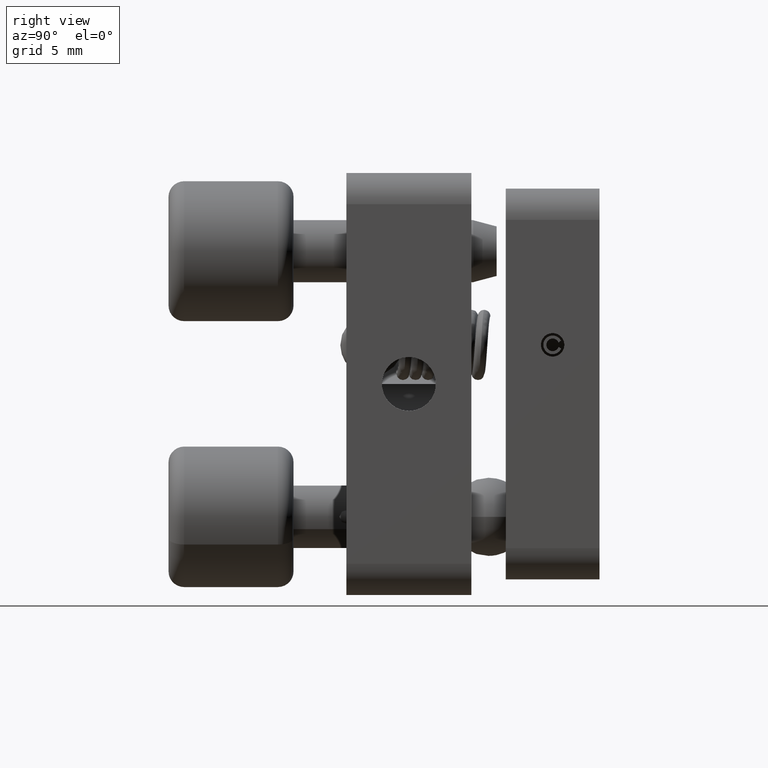
[diagram: clean part render]
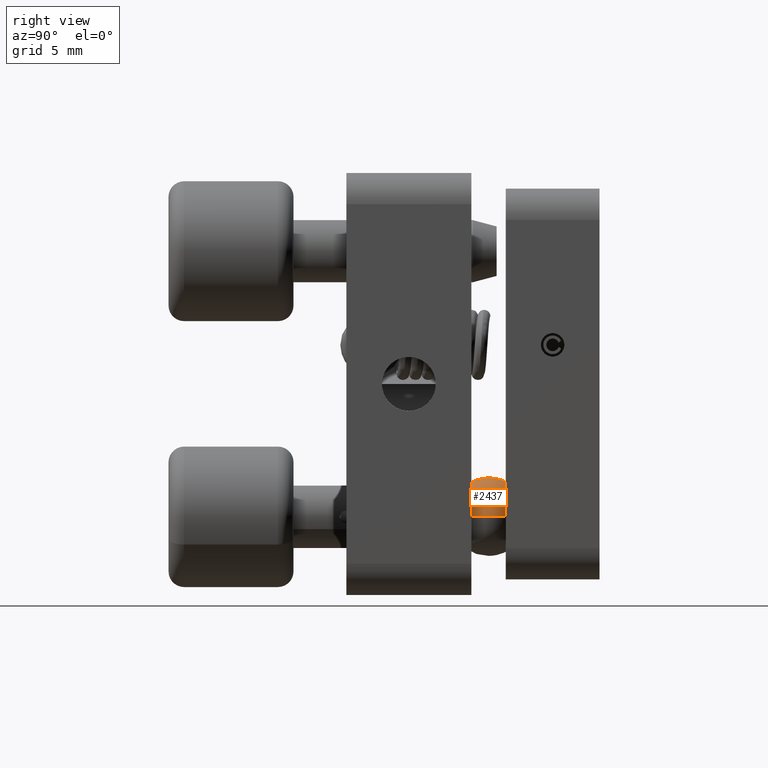
[diagram: same view with one face highlighted and labeled with its STEP entity id]
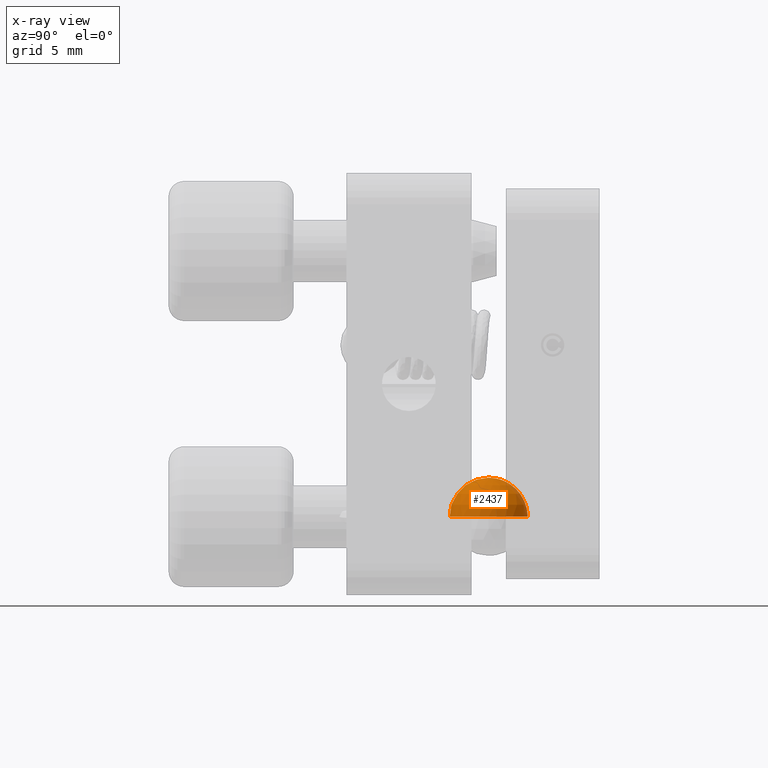
[diagram: x-ray of the same camera — body ghosted, the highlighted face saturated]
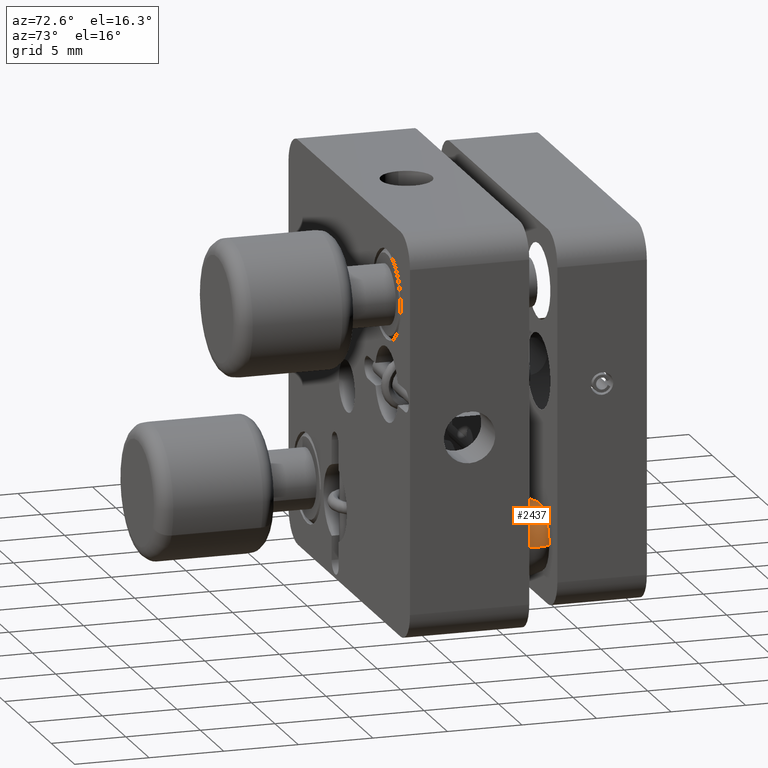
[diagram: same view with one face highlighted and labeled with its STEP entity id]
A machine part, right view. The second image highlights one B-rep face of the part: STEP entity #2437.
The next image is the same camera in x-ray: the body ghosted, the highlighted face saturated — about 0% of this face is hidden behind the body in this view.
A second angle (auxiliary view) of the same face is appended — the face is thin or edge-on in the first view.
In plain terms, the highlighted spherical surface has radius 2.5 mm.
Its self-contained STEP definition (entity closure, byte-faithful):
#70 = VERTEX_POINT ( 'NONE', #2639 ) ;
#970 = CARTESIAN_POINT ( 'NONE',  ( 7.774155478565020900, -3.011233217847381700, 16.50000000000000700 ) ) ;
#1105 = VERTEX_POINT ( 'NONE', #7019 ) ;
#1125 = ORIENTED_EDGE ( 'NONE', *, *, #6042, .T. ) ;
#1689 = AXIS2_PLACEMENT_3D ( 'NONE', #970, #6924, #1837 ) ;
#1813 = CARTESIAN_POINT ( 'NONE',  ( 7.774155478565020900, -3.011233217847381700, 16.50000000000000700 ) ) ;
#1837 = DIRECTION ( 'NONE',  ( 1.000000000000000000, 0.0000000000000000000, 0.0000000000000000000 ) ) ;
#2090 = FACE_OUTER_BOUND ( 'NONE', #3368, .T. ) ;
#2437 = ADVANCED_FACE ( 'NONE', ( #2090 ), #3514, .T. ) ;
#2570 = DIRECTION ( 'NONE',  ( -0.0000000000000000000, 0.0000000000000000000, -1.000000000000000000 ) ) ;
#2639 = CARTESIAN_POINT ( 'NONE',  ( 5.274155478565020000, -3.011233217847381700, 16.50000000000000700 ) ) ;
#2660 = DIRECTION ( 'NONE',  ( 0.0000000000000000000, 1.000000000000000000, 0.0000000000000000000 ) ) ;
#3368 = EDGE_LOOP ( 'NONE', ( #4051, #1125 ) ) ;
#3514 = SPHERICAL_SURFACE ( 'NONE', #6654, 2.500000000000000000 ) ;
#4051 = ORIENTED_EDGE ( 'NONE', *, *, #5516, .F. ) ;
#4796 = AXIS2_PLACEMENT_3D ( 'NONE', #1813, #7747, #2660 ) ;
#5081 = CARTESIAN_POINT ( 'NONE',  ( 7.774155478565020900, -3.011233217847381700, 16.50000000000000700 ) ) ;
#5516 = EDGE_CURVE ( 'NONE', #1105, #70, #5927, .T. ) ;
#5927 = CIRCLE ( 'NONE', #4796, 2.500000000000000000 ) ;
#6042 = EDGE_CURVE ( 'NONE', #1105, #70, #9076, .T. ) ;
#6654 = AXIS2_PLACEMENT_3D ( 'NONE', #5081, #2570, #8519 ) ;
#6924 = DIRECTION ( 'NONE',  ( -0.0000000000000000000, 0.0000000000000000000, 1.000000000000000000 ) ) ;
#7019 = CARTESIAN_POINT ( 'NONE',  ( 10.27415547856502100, -3.011233217847381700, 16.50000000000000700 ) ) ;
#7747 = DIRECTION ( 'NONE',  ( 0.0000000000000000000, 1.224646799147353200E-016, -1.000000000000000000 ) ) ;
#8519 = DIRECTION ( 'NONE',  ( 0.0000000000000000000, 1.000000000000000000, 0.0000000000000000000 ) ) ;
#9076 = CIRCLE ( 'NONE', #1689, 2.500000000000000400 ) ;